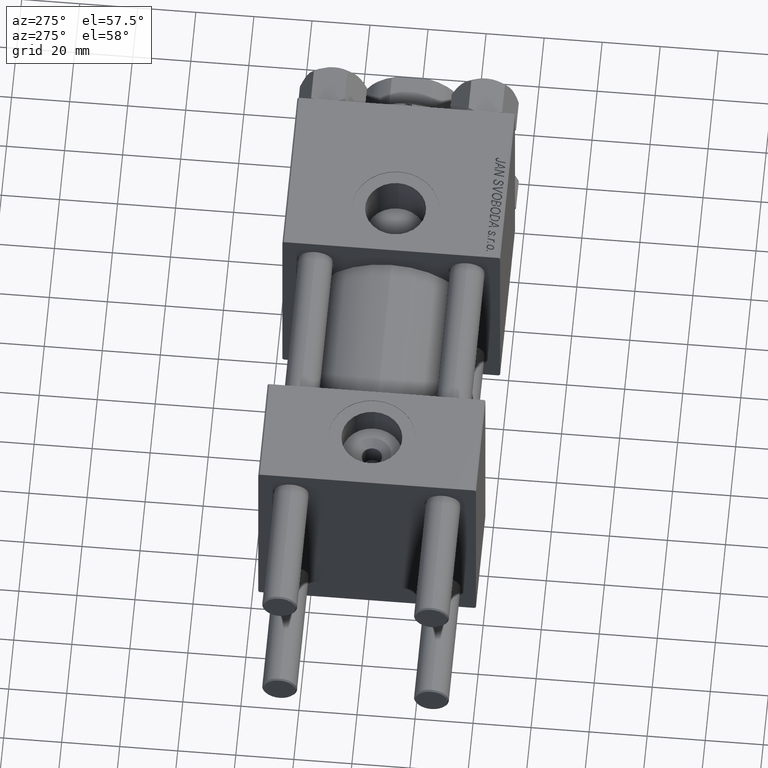
[diagram: clean part render]
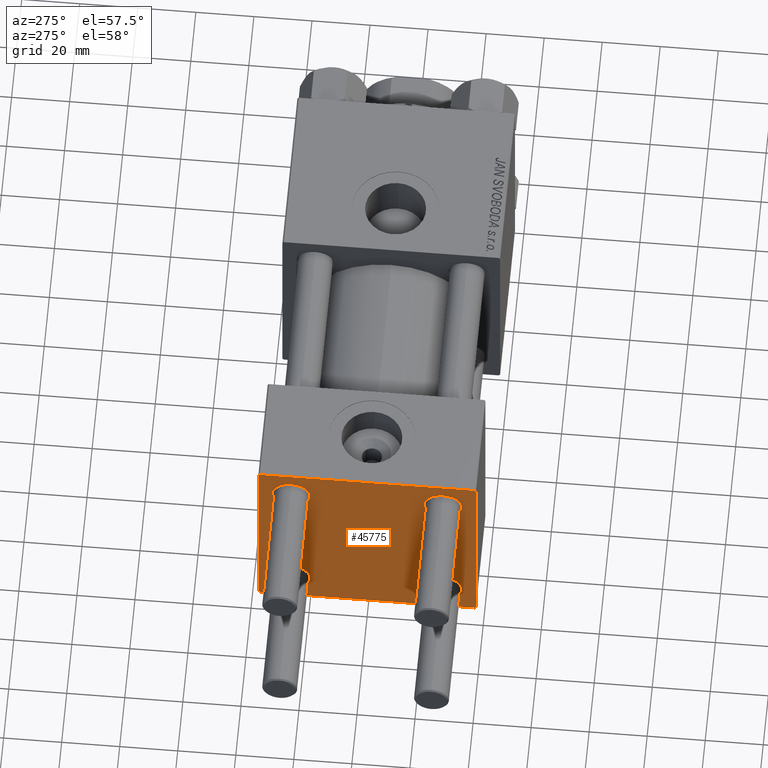
[diagram: same view with one face highlighted and labeled with its STEP entity id]
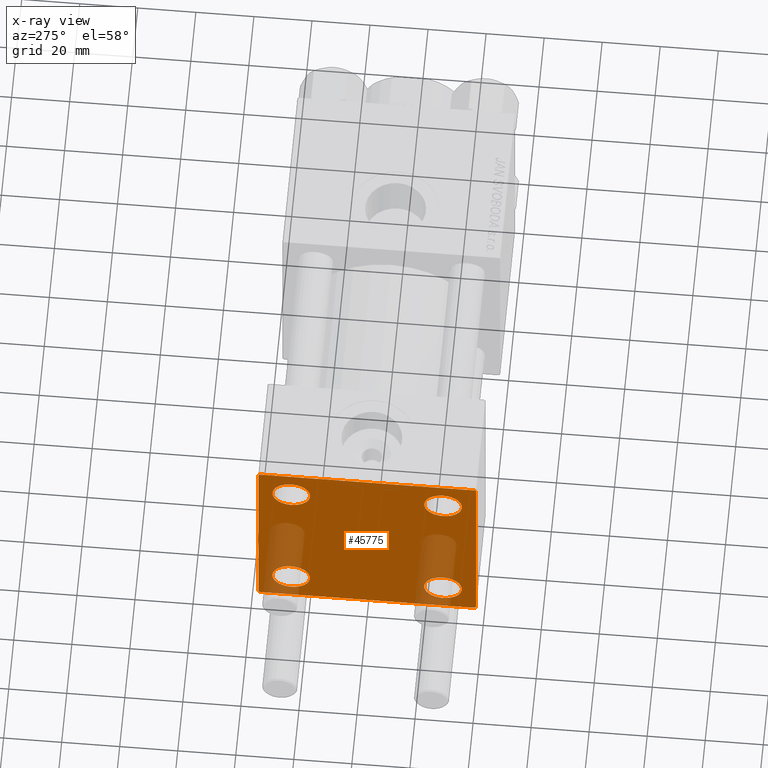
[diagram: x-ray of the same camera — body ghosted, the highlighted face saturated]
A machine part, auxiliary view. The second image highlights one B-rep face of the part: STEP entity #45775.
The next image is the same camera in x-ray: the body ghosted, the highlighted face saturated — about 17% of this face is hidden behind the body in this view.
In plain terms, the highlighted planar face has unit normal (-1, 0, 0).
Its self-contained STEP definition (entity closure, byte-faithful):
#308 = DIRECTION ( 'NONE',  ( 0.000000000000000000, 0.000000000000000000, 1.000000000000000000 ) ) ;
#540 = ORIENTED_EDGE ( 'NONE', *, *, #42275, .T. ) ;
#977 = VERTEX_POINT ( 'NONE', #12676 ) ;
#1059 = AXIS2_PLACEMENT_3D ( 'NONE', #11477, #19308, #14639 ) ;
#1474 = CARTESIAN_POINT ( 'NONE',  ( 0.000000000000000000, -26.14999999999999147, 32.65000000000003411 ) ) ;
#1792 = DIRECTION ( 'NONE',  ( 0.000000000000000000, 0.000000000000000000, 1.000000000000000000 ) ) ;
#2111 = EDGE_CURVE ( 'NONE', #37412, #19669, #30887, .T. ) ;
#2132 = VERTEX_POINT ( 'NONE', #46816 ) ;
#2442 = DIRECTION ( 'NONE',  ( -0.000000000000000000, 0.7071067811865474617, 0.7071067811865474617 ) ) ;
#2994 = AXIS2_PLACEMENT_3D ( 'NONE', #28392, #15609, #32064 ) ;
#3354 = CARTESIAN_POINT ( 'NONE',  ( 0.000000000000000000, 26.14999999999999858, 26.15000000000000213 ) ) ;
#3490 = EDGE_CURVE ( 'NONE', #2132, #20000, #18607, .T. ) ;
#3587 = CARTESIAN_POINT ( 'NONE',  ( 0.000000000000000000, 36.99999999999997868, -37.50000000000000000 ) ) ;
#4912 = VECTOR ( 'NONE', #37482, 1000.000000000000000 ) ;
#6233 = VECTOR ( 'NONE', #41435, 1000.000000000000114 ) ;
#6661 = EDGE_CURVE ( 'NONE', #17585, #42021, #36778, .T. ) ;
#6667 = FACE_BOUND ( 'NONE', #27978, .T. ) ;
#7445 = CARTESIAN_POINT ( 'NONE',  ( 0.000000000000000000, -26.14999999999999147, -19.64999999999999503 ) ) ;
#7764 = CIRCLE ( 'NONE', #36969, 6.500000000000023093 ) ;
#8961 = ORIENTED_EDGE ( 'NONE', *, *, #6661, .T. ) ;
#9330 = VECTOR ( 'NONE', #34309, 1000.000000000000000 ) ;
#9780 = VECTOR ( 'NONE', #2442, 1000.000000000000114 ) ;
#9824 = CARTESIAN_POINT ( 'NONE',  ( 0.000000000000000000, 37.24999999999999289, 37.24999999999999289 ) ) ;
#11171 = ORIENTED_EDGE ( 'NONE', *, *, #23543, .T. ) ;
#11477 = CARTESIAN_POINT ( 'NONE',  ( 0.000000000000000000, -26.14999999999999147, -26.15000000000000924 ) ) ;
#12371 = CARTESIAN_POINT ( 'NONE',  ( 0.000000000000000000, -37.00000000000002132, -37.50000000000000711 ) ) ;
#12676 = CARTESIAN_POINT ( 'NONE',  ( 0.000000000000000000, -37.00000000000000711, 37.49999999999999289 ) ) ;
#12967 = EDGE_CURVE ( 'NONE', #14499, #22100, #7764, .T. ) ;
#13054 = DIRECTION ( 'NONE',  ( 1.000000000000000000, -0.000000000000000000, 0.000000000000000000 ) ) ;
#13524 = CARTESIAN_POINT ( 'NONE',  ( 0.000000000000000000, -26.14999999999999147, 26.15000000000000924 ) ) ;
#13975 = ORIENTED_EDGE ( 'NONE', *, *, #2111, .T. ) ;
#14166 = VERTEX_POINT ( 'NONE', #50346 ) ;
#14255 = LINE ( 'NONE', #9824, #6233 ) ;
#14487 = LINE ( 'NONE', #46355, #4912 ) ;
#14499 = VERTEX_POINT ( 'NONE', #29409 ) ;
#14639 = DIRECTION ( 'NONE',  ( 0.000000000000000000, 0.000000000000000000, 1.000000000000000000 ) ) ;
#14726 = LINE ( 'NONE', #18123, #9330 ) ;
#14893 = CARTESIAN_POINT ( 'NONE',  ( 0.000000000000000000, 36.99999999999999289, 37.50000000000000000 ) ) ;
#15530 = CIRCLE ( 'NONE', #2994, 6.500000000000023093 ) ;
#15609 = DIRECTION ( 'NONE',  ( 1.000000000000000000, -0.000000000000000000, 0.000000000000000000 ) ) ;
#16636 = ORIENTED_EDGE ( 'NONE', *, *, #50818, .T. ) ;
#16677 = DIRECTION ( 'NONE',  ( 0.000000000000000000, -1.000000000000000000, -9.251858538542971581E-17 ) ) ;
#17585 = VERTEX_POINT ( 'NONE', #19636 ) ;
#18123 = CARTESIAN_POINT ( 'NONE',  ( 0.000000000000000000, 37.49999999999999289, -37.50000000000000000 ) ) ;
#18167 = EDGE_CURVE ( 'NONE', #42021, #17585, #38828, .T. ) ;
#18437 = VECTOR ( 'NONE', #20365, 1000.000000000000000 ) ;
#18607 = CIRCLE ( 'NONE', #1059, 6.500000000000015987 ) ;
#18684 = CARTESIAN_POINT ( 'NONE',  ( 0.000000000000000000, 0.000000000000000000, 0.000000000000000000 ) ) ;
#18939 = PLANE ( 'NONE',  #42035 ) ;
#19031 = DIRECTION ( 'NONE',  ( 1.000000000000000000, -0.000000000000000000, 0.000000000000000000 ) ) ;
#19308 = DIRECTION ( 'NONE',  ( 1.000000000000000000, -0.000000000000000000, 0.000000000000000000 ) ) ;
#19372 = EDGE_CURVE ( 'NONE', #22799, #977, #47800, .T. ) ;
#19453 = DIRECTION ( 'NONE',  ( -1.000000000000000000, 0.000000000000000000, -0.000000000000000000 ) ) ;
#19589 = ORIENTED_EDGE ( 'NONE', *, *, #18167, .T. ) ;
#19636 = CARTESIAN_POINT ( 'NONE',  ( 0.000000000000000000, -26.14999999999999147, 19.64999999999999147 ) ) ;
#19668 = AXIS2_PLACEMENT_3D ( 'NONE', #41357, #42129, #49456 ) ;
#19669 = VERTEX_POINT ( 'NONE', #3587 ) ;
#19771 = EDGE_CURVE ( 'NONE', #22100, #14499, #15530, .T. ) ;
#20000 = VERTEX_POINT ( 'NONE', #7445 ) ;
#20154 = CARTESIAN_POINT ( 'NONE',  ( 0.000000000000000000, -26.14999999999999147, -26.15000000000000924 ) ) ;
#20365 = DIRECTION ( 'NONE',  ( 0.000000000000000000, 0.000000000000000000, -1.000000000000000000 ) ) ;
#21010 = CARTESIAN_POINT ( 'NONE',  ( 0.000000000000000000, -37.24999999999975842, -37.25000000000027001 ) ) ;
#21480 = ORIENTED_EDGE ( 'NONE', *, *, #36751, .T. ) ;
#22100 = VERTEX_POINT ( 'NONE', #37146 ) ;
#22167 = EDGE_LOOP ( 'NONE', ( #24055, #38441 ) ) ;
#22202 = AXIS2_PLACEMENT_3D ( 'NONE', #44386, #13054, #1792 ) ;
#22296 = EDGE_CURVE ( 'NONE', #41957, #27533, #35555, .T. ) ;
#22799 = VERTEX_POINT ( 'NONE', #14893 ) ;
#23543 = EDGE_CURVE ( 'NONE', #20000, #2132, #27237, .T. ) ;
#24055 = ORIENTED_EDGE ( 'NONE', *, *, #19771, .T. ) ;
#24862 = ORIENTED_EDGE ( 'NONE', *, *, #19372, .F. ) ;
#25049 = LINE ( 'NONE', #29257, #18437 ) ;
#25188 = VECTOR ( 'NONE', #42381, 1000.000000000000114 ) ;
#25789 = DIRECTION ( 'NONE',  ( 1.000000000000000000, -0.000000000000000000, 0.000000000000000000 ) ) ;
#26438 = EDGE_CURVE ( 'NONE', #14166, #977, #42916, .T. ) ;
#26522 = FACE_BOUND ( 'NONE', #41970, .T. ) ;
#26968 = CARTESIAN_POINT ( 'NONE',  ( 0.000000000000000000, 37.24999999999998579, -37.24999999999998579 ) ) ;
#27237 = CIRCLE ( 'NONE', #51426, 6.500000000000015987 ) ;
#27533 = VERTEX_POINT ( 'NONE', #29260 ) ;
#27817 = DIRECTION ( 'NONE',  ( -0.000000000000000000, 0.000000000000000000, 1.000000000000000000 ) ) ;
#27978 = EDGE_LOOP ( 'NONE', ( #39062, #34179 ) ) ;
#27988 = DIRECTION ( 'NONE',  ( 0.000000000000000000, 0.000000000000000000, 1.000000000000000000 ) ) ;
#28392 = CARTESIAN_POINT ( 'NONE',  ( 0.000000000000000000, 26.14999999999999858, 26.15000000000000213 ) ) ;
#29257 = CARTESIAN_POINT ( 'NONE',  ( 0.000000000000000000, 37.49999999999999289, 37.50000000000000000 ) ) ;
#29260 = CARTESIAN_POINT ( 'NONE',  ( 0.000000000000000000, 26.14999999999999858, -32.65000000000001990 ) ) ;
#29409 = CARTESIAN_POINT ( 'NONE',  ( 0.000000000000000000, 26.14999999999999858, 19.64999999999998437 ) ) ;
#30121 = AXIS2_PLACEMENT_3D ( 'NONE', #13524, #25789, #34149 ) ;
#30357 = ORIENTED_EDGE ( 'NONE', *, *, #37935, .T. ) ;
#30887 = LINE ( 'NONE', #26968, #25188 ) ;
#30980 = EDGE_CURVE ( 'NONE', #14166, #50068, #14487, .T. ) ;
#31568 = EDGE_CURVE ( 'NONE', #27533, #41957, #34163, .T. ) ;
#31865 = CARTESIAN_POINT ( 'NONE',  ( 0.000000000000000000, 37.49999999999999289, 37.50000000000000000 ) ) ;
#32064 = DIRECTION ( 'NONE',  ( 0.000000000000000000, 0.000000000000000000, 1.000000000000000000 ) ) ;
#32172 = DIRECTION ( 'NONE',  ( 1.000000000000000000, -0.000000000000000000, 0.000000000000000000 ) ) ;
#32717 = ORIENTED_EDGE ( 'NONE', *, *, #26438, .T. ) ;
#32888 = FACE_OUTER_BOUND ( 'NONE', #35860, .T. ) ;
#34149 = DIRECTION ( 'NONE',  ( 0.000000000000000000, 0.000000000000000000, 1.000000000000000000 ) ) ;
#34163 = CIRCLE ( 'NONE', #46692, 6.500000000000015987 ) ;
#34179 = ORIENTED_EDGE ( 'NONE', *, *, #31568, .T. ) ;
#34309 = DIRECTION ( 'NONE',  ( 0.000000000000000000, -1.000000000000000000, -9.251858538542972814E-17 ) ) ;
#34671 = VERTEX_POINT ( 'NONE', #12371 ) ;
#35532 = EDGE_LOOP ( 'NONE', ( #11171, #50471 ) ) ;
#35555 = CIRCLE ( 'NONE', #22202, 6.500000000000015987 ) ;
#35860 = EDGE_LOOP ( 'NONE', ( #30357, #13975, #21480, #540, #50259, #32717, #24862, #16636 ) ) ;
#36100 = DIRECTION ( 'NONE',  ( 1.000000000000000000, -0.000000000000000000, 0.000000000000000000 ) ) ;
#36491 = VERTEX_POINT ( 'NONE', #40364 ) ;
#36577 = CARTESIAN_POINT ( 'NONE',  ( 0.000000000000000000, 26.14999999999999858, -26.15000000000000213 ) ) ;
#36751 = EDGE_CURVE ( 'NONE', #19669, #34671, #14726, .T. ) ;
#36778 = CIRCLE ( 'NONE', #30121, 6.500000000000023093 ) ;
#36797 = FACE_BOUND ( 'NONE', #22167, .T. ) ;
#36969 = AXIS2_PLACEMENT_3D ( 'NONE', #3354, #19031, #47503 ) ;
#37146 = CARTESIAN_POINT ( 'NONE',  ( 0.000000000000000000, 26.14999999999999858, 32.65000000000002700 ) ) ;
#37412 = VERTEX_POINT ( 'NONE', #50642 ) ;
#37482 = DIRECTION ( 'NONE',  ( 0.000000000000000000, 9.251858538542971581E-17, -1.000000000000000000 ) ) ;
#37935 = EDGE_CURVE ( 'NONE', #36491, #37412, #25049, .T. ) ;
#38441 = ORIENTED_EDGE ( 'NONE', *, *, #12967, .T. ) ;
#38744 = CARTESIAN_POINT ( 'NONE',  ( -0.000000000000000000, -37.25000000000000000, 37.25000000000000000 ) ) ;
#38828 = CIRCLE ( 'NONE', #19668, 6.500000000000023093 ) ;
#39062 = ORIENTED_EDGE ( 'NONE', *, *, #22296, .T. ) ;
#39389 = CARTESIAN_POINT ( 'NONE',  ( 0.000000000000000000, 26.14999999999999858, -19.64999999999998792 ) ) ;
#40350 = DIRECTION ( 'NONE',  ( 0.000000000000000000, -0.7071067811865524577, 0.7071067811865426878 ) ) ;
#40364 = CARTESIAN_POINT ( 'NONE',  ( 0.000000000000000000, 37.49999999999999289, 37.00000000000000000 ) ) ;
#41357 = CARTESIAN_POINT ( 'NONE',  ( 0.000000000000000000, -26.14999999999999147, 26.15000000000000924 ) ) ;
#41435 = DIRECTION ( 'NONE',  ( 0.000000000000000000, 0.7071067811865474617, -0.7071067811865474617 ) ) ;
#41957 = VERTEX_POINT ( 'NONE', #39389 ) ;
#41970 = EDGE_LOOP ( 'NONE', ( #19589, #8961 ) ) ;
#42021 = VERTEX_POINT ( 'NONE', #1474 ) ;
#42035 = AXIS2_PLACEMENT_3D ( 'NONE', #18684, #19453, #27817 ) ;
#42129 = DIRECTION ( 'NONE',  ( 1.000000000000000000, -0.000000000000000000, 0.000000000000000000 ) ) ;
#42275 = EDGE_CURVE ( 'NONE', #34671, #50068, #48200, .T. ) ;
#42381 = DIRECTION ( 'NONE',  ( -0.000000000000000000, -0.7071067811865474617, -0.7071067811865474617 ) ) ;
#42452 = FACE_BOUND ( 'NONE', #35532, .T. ) ;
#42916 = LINE ( 'NONE', #38744, #9780 ) ;
#43888 = VECTOR ( 'NONE', #16677, 1000.000000000000000 ) ;
#44386 = CARTESIAN_POINT ( 'NONE',  ( 0.000000000000000000, 26.14999999999999858, -26.15000000000000213 ) ) ;
#45775 = ADVANCED_FACE ( 'NONE', ( #26522, #42452, #6667, #36797, #32888 ), #18939, .T. ) ;
#46355 = CARTESIAN_POINT ( 'NONE',  ( 0.000000000000000000, -37.50000000000000711, 37.49999999999999289 ) ) ;
#46692 = AXIS2_PLACEMENT_3D ( 'NONE', #36577, #32172, #27988 ) ;
#46816 = CARTESIAN_POINT ( 'NONE',  ( 0.000000000000000000, -26.14999999999999147, -32.65000000000002700 ) ) ;
#47503 = DIRECTION ( 'NONE',  ( 0.000000000000000000, 0.000000000000000000, 1.000000000000000000 ) ) ;
#47800 = LINE ( 'NONE', #31865, #43888 ) ;
#48200 = LINE ( 'NONE', #21010, #51096 ) ;
#48736 = CARTESIAN_POINT ( 'NONE',  ( 0.000000000000000000, -37.50000000000000000, -37.00000000000003553 ) ) ;
#49456 = DIRECTION ( 'NONE',  ( 0.000000000000000000, 0.000000000000000000, 1.000000000000000000 ) ) ;
#50068 = VERTEX_POINT ( 'NONE', #48736 ) ;
#50259 = ORIENTED_EDGE ( 'NONE', *, *, #30980, .F. ) ;
#50346 = CARTESIAN_POINT ( 'NONE',  ( 0.000000000000000000, -37.50000000000000711, 36.99999999999999289 ) ) ;
#50471 = ORIENTED_EDGE ( 'NONE', *, *, #3490, .T. ) ;
#50642 = CARTESIAN_POINT ( 'NONE',  ( 0.000000000000000000, 37.49999999999999289, -36.99999999999998579 ) ) ;
#50818 = EDGE_CURVE ( 'NONE', #22799, #36491, #14255, .T. ) ;
#51096 = VECTOR ( 'NONE', #40350, 1000.000000000000000 ) ;
#51426 = AXIS2_PLACEMENT_3D ( 'NONE', #20154, #36100, #308 ) ;